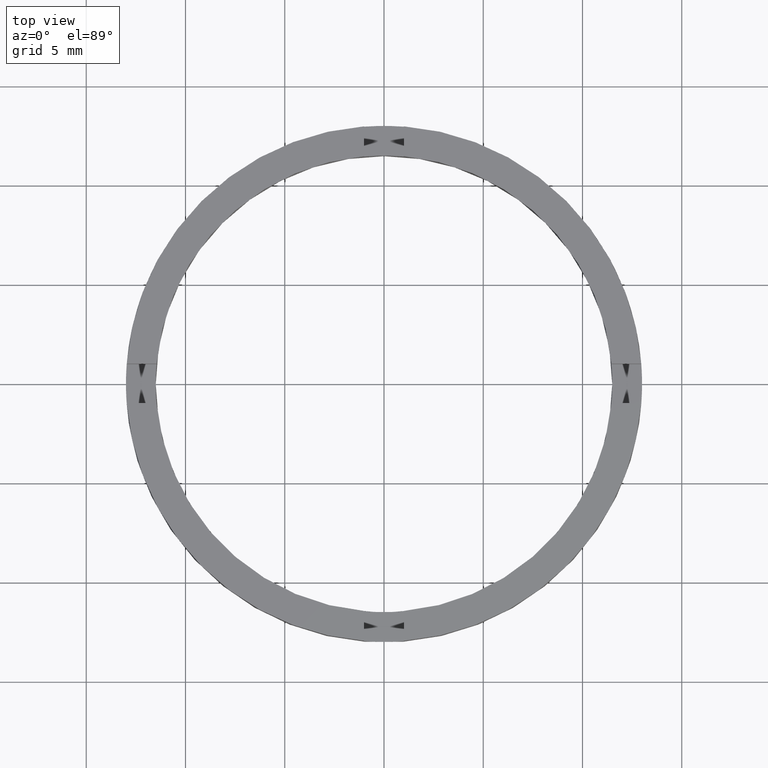
[diagram: clean part render]
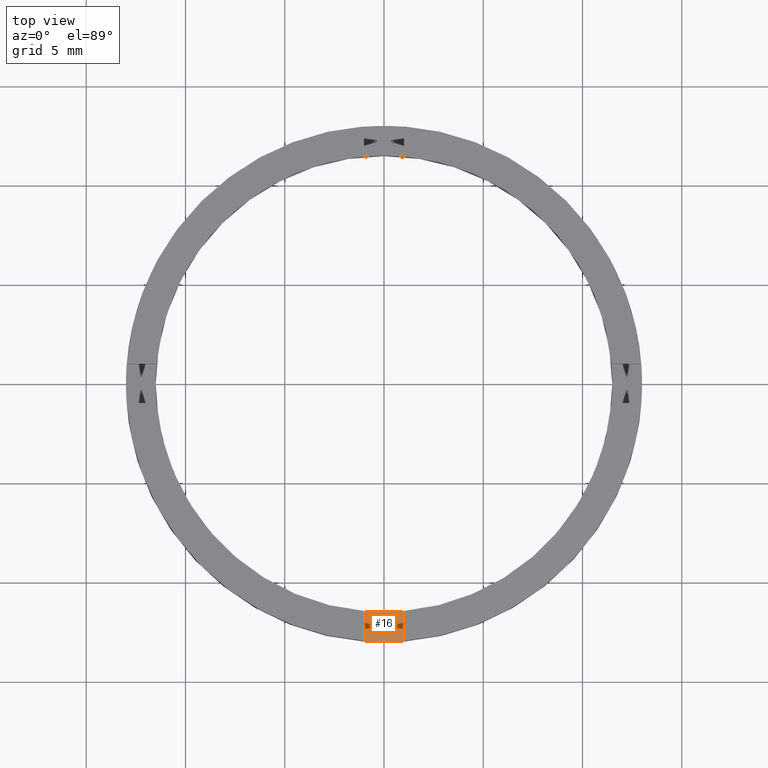
[diagram: same view with one face highlighted and labeled with its STEP entity id]
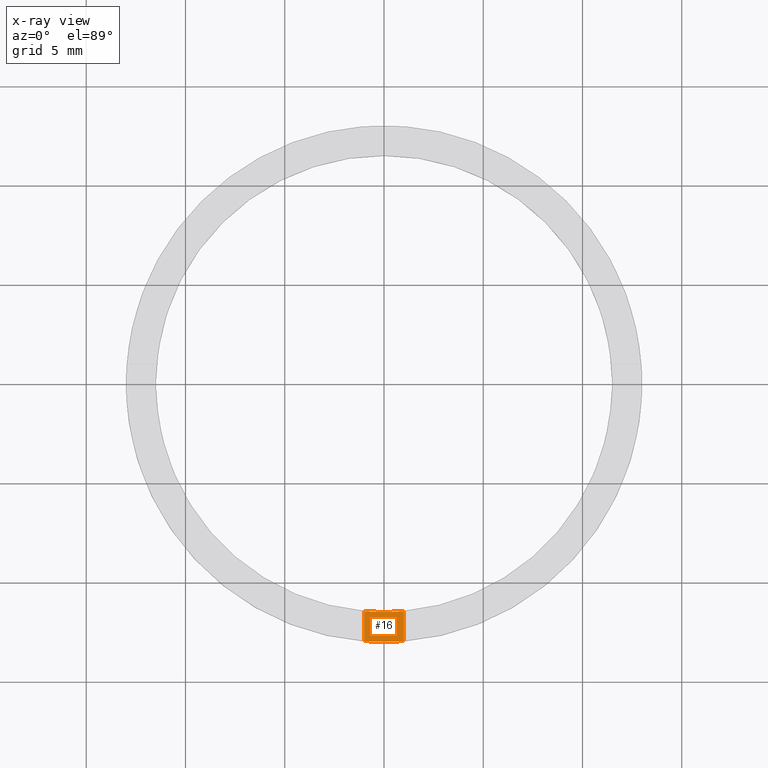
[diagram: x-ray of the same camera — body ghosted, the highlighted face saturated]
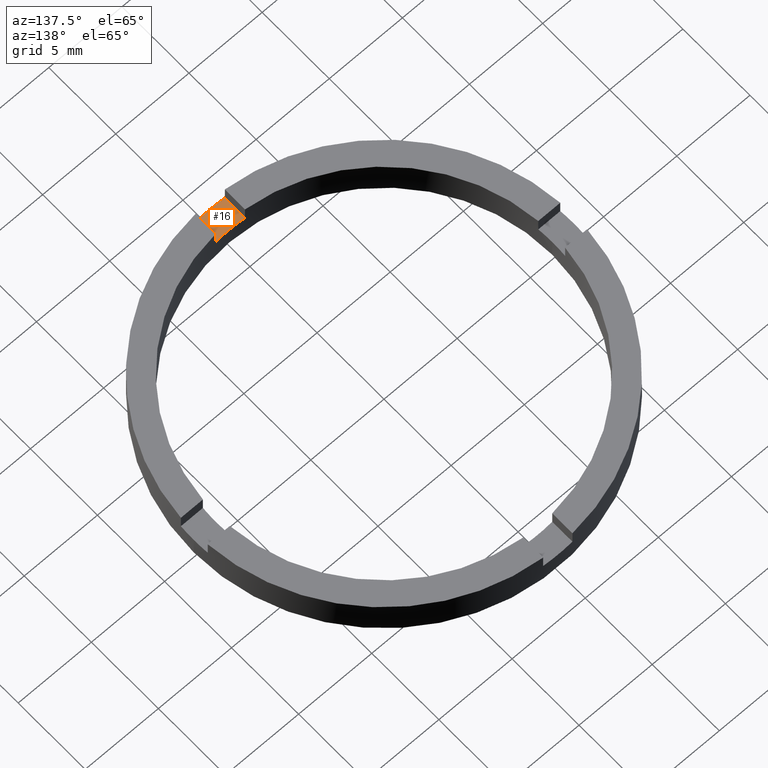
[diagram: same view with one face highlighted and labeled with its STEP entity id]
A machine part, top view. The second image highlights one B-rep face of the part: STEP entity #16.
The next image is the same camera in x-ray: the body ghosted, the highlighted face saturated — about 0% of this face is hidden behind the body in this view.
A second angle (auxiliary view) of the same face is appended — the face is thin or edge-on in the first view.
In plain terms, the highlighted planar face has unit normal (-0, 0, 1).
Its self-contained STEP definition (entity closure, byte-faithful):
#12 = VECTOR ( 'NONE', #390, 1000.000000000000000 ) ;
#16 = ADVANCED_FACE ( 'NONE', ( #462 ), #176, .T. ) ;
#21 = DIRECTION ( 'NONE',  ( -0.000000000000000000, 0.000000000000000000, 1.000000000000000000 ) ) ;
#67 = DIRECTION ( 'NONE',  ( 1.000000000000000000, 0.000000000000000000, 0.000000000000000000 ) ) ;
#73 = AXIS2_PLACEMENT_3D ( 'NONE', #673, #21, #67 ) ;
#90 = VERTEX_POINT ( 'NONE', #179 ) ;
#106 = ORIENTED_EDGE ( 'NONE', *, *, #706, .T. ) ;
#120 = AXIS2_PLACEMENT_3D ( 'NONE', #660, #739, #317 ) ;
#137 = ORIENTED_EDGE ( 'NONE', *, *, #566, .F. ) ;
#141 = VERTEX_POINT ( 'NONE', #279 ) ;
#176 = PLANE ( 'NONE',  #480 ) ;
#179 = CARTESIAN_POINT ( 'NONE',  ( 0.9999999999998363531, -11.45643923738961334, 1.500000000000000000 ) ) ;
#238 = CARTESIAN_POINT ( 'NONE',  ( 0.000000000000000000, 0.000000000000000000, 1.500000000000000000 ) ) ;
#239 = LINE ( 'NONE', #452, #776 ) ;
#253 = EDGE_CURVE ( 'NONE', #606, #90, #533, .T. ) ;
#262 = DIRECTION ( 'NONE',  ( 1.000000000000000000, 0.000000000000000000, 0.000000000000000000 ) ) ;
#279 = CARTESIAN_POINT ( 'NONE',  ( -1.000000000000163425, -12.96148139681570655, 1.500000000000000000 ) ) ;
#281 = DIRECTION ( 'NONE',  ( 1.301042606982605074E-16, -1.000000000000000000, 0.000000000000000000 ) ) ;
#285 = CIRCLE ( 'NONE', #120, 12.99999999999999822 ) ;
#317 = DIRECTION ( 'NONE',  ( 1.000000000000000000, 0.000000000000000000, 0.000000000000000000 ) ) ;
#320 = DIRECTION ( 'NONE',  ( -0.000000000000000000, 0.000000000000000000, 1.000000000000000000 ) ) ;
#329 = CARTESIAN_POINT ( 'NONE',  ( 0.9999999999998365752, -12.96148139681572964, 1.500000000000000000 ) ) ;
#331 = CARTESIAN_POINT ( 'NONE',  ( 0.9999999999998352429, -3.000000000000176303, 1.500000000000000000 ) ) ;
#390 = DIRECTION ( 'NONE',  ( -1.301042606982605074E-16, 1.000000000000000000, -0.000000000000000000 ) ) ;
#452 = CARTESIAN_POINT ( 'NONE',  ( -1.000000000000164757, -3.000000000000176303, 1.500000000000000000 ) ) ;
#458 = ORIENTED_EDGE ( 'NONE', *, *, #253, .T. ) ;
#462 = FACE_OUTER_BOUND ( 'NONE', #740, .T. ) ;
#480 = AXIS2_PLACEMENT_3D ( 'NONE', #238, #320, #262 ) ;
#507 = EDGE_CURVE ( 'NONE', #698, #141, #239, .T. ) ;
#533 = LINE ( 'NONE', #331, #12 ) ;
#566 = EDGE_CURVE ( 'NONE', #698, #90, #574, .T. ) ;
#574 = CIRCLE ( 'NONE', #73, 11.50000000000000000 ) ;
#606 = VERTEX_POINT ( 'NONE', #329 ) ;
#629 = ORIENTED_EDGE ( 'NONE', *, *, #507, .T. ) ;
#660 = CARTESIAN_POINT ( 'NONE',  ( 0.000000000000000000, 0.000000000000000000, 1.500000000000000000 ) ) ;
#673 = CARTESIAN_POINT ( 'NONE',  ( 0.000000000000000000, 0.000000000000000000, 1.500000000000000000 ) ) ;
#698 = VERTEX_POINT ( 'NONE', #742 ) ;
#706 = EDGE_CURVE ( 'NONE', #141, #606, #285, .T. ) ;
#739 = DIRECTION ( 'NONE',  ( -0.000000000000000000, 0.000000000000000000, 1.000000000000000000 ) ) ;
#740 = EDGE_LOOP ( 'NONE', ( #106, #458, #137, #629 ) ) ;
#742 = CARTESIAN_POINT ( 'NONE',  ( -1.000000000000163647, -11.45643923738958669, 1.500000000000000000 ) ) ;
#776 = VECTOR ( 'NONE', #281, 1000.000000000000000 ) ;